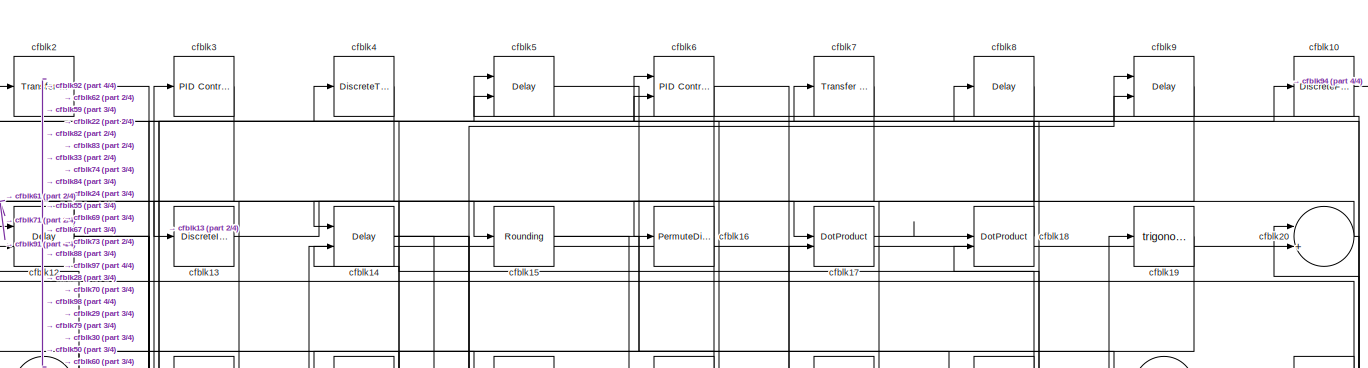
[diagram: root canvas - part 1/4, full width, top band]
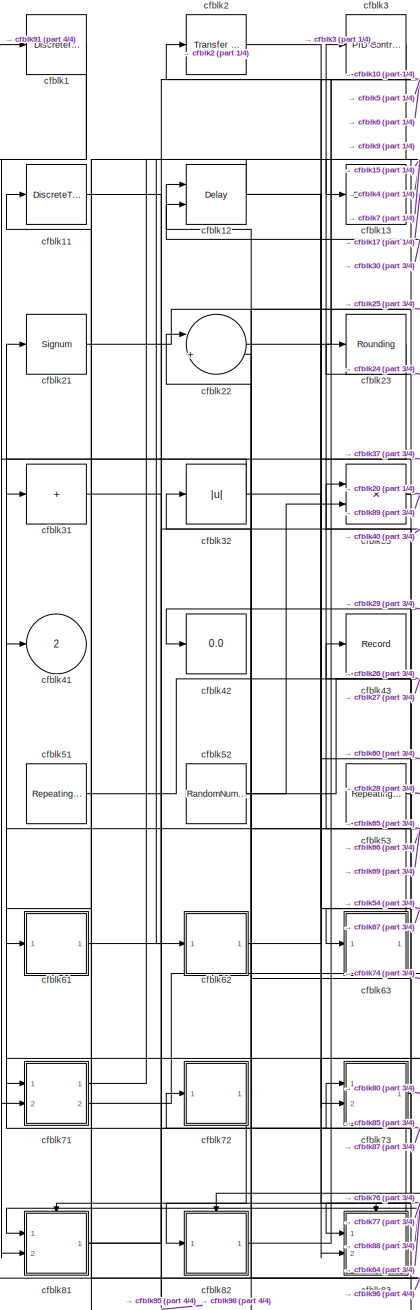
[diagram: root canvas - part 2/4, left side, full height]
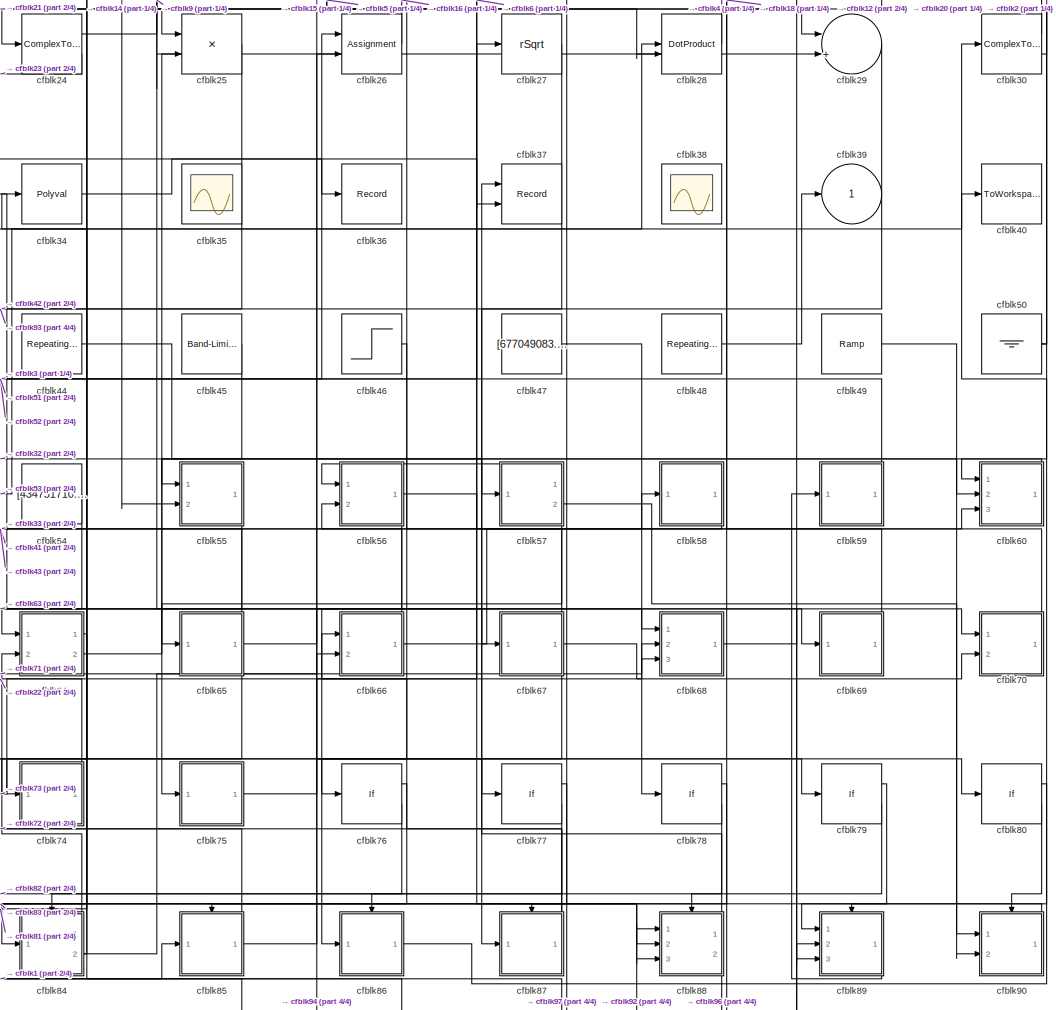
[diagram: root canvas - part 3/4, central region]
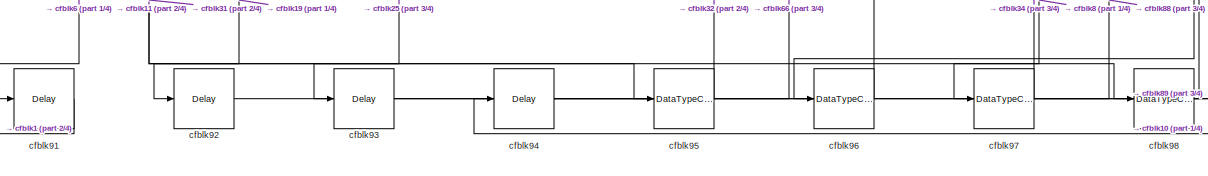
[diagram: root canvas - part 4/4, full width, bottom band]
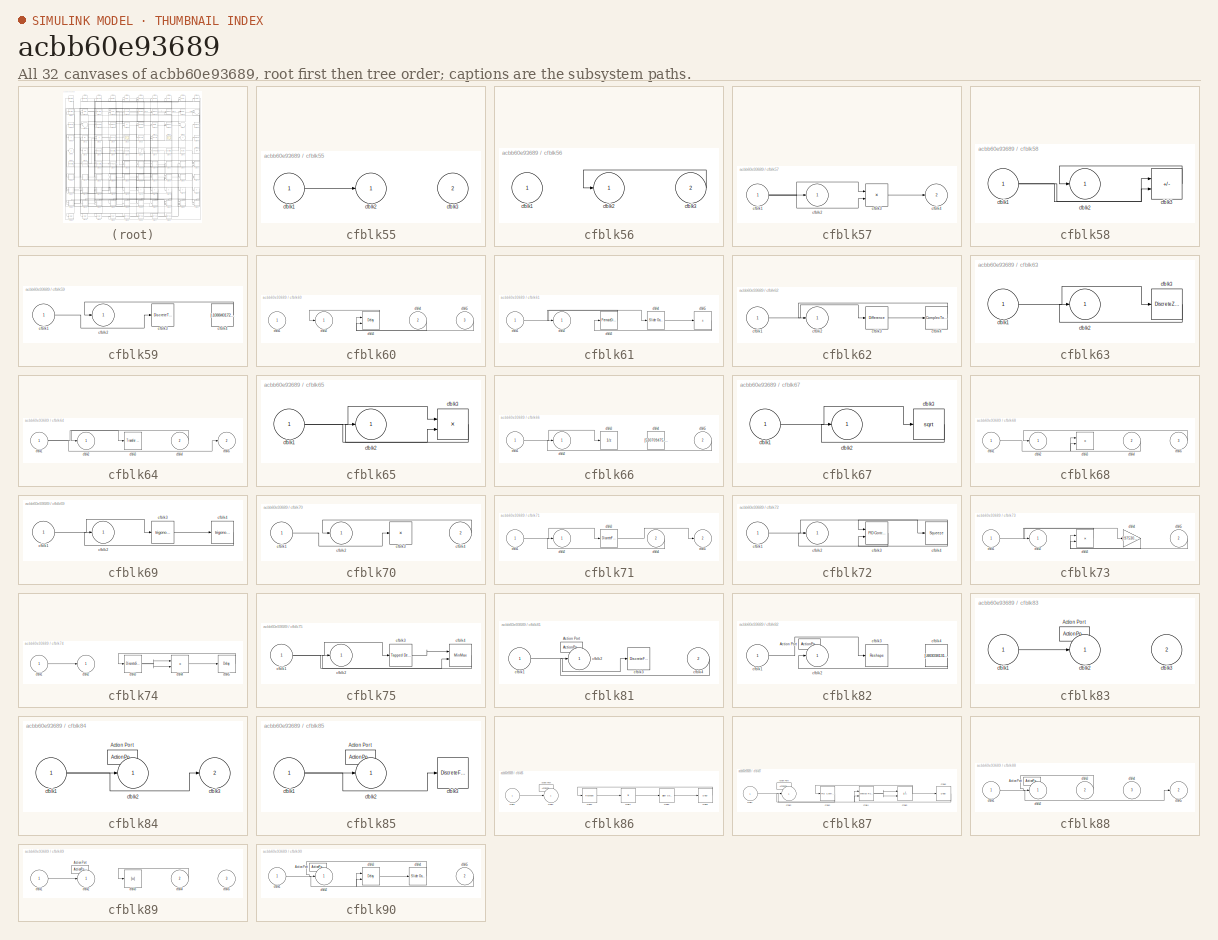
[diagram: thumbnail index - all 32 canvases of the model, root first then tree order]
MODEL slx_acbb60e93689
KIND model
CONFIG AbsTol = auto
CONFIG EnableMultiTasking = off
CONFIG FixedStep = auto
CONFIG MaxStep = auto
CONFIG MinStep = auto
CONFIG RelTol = 1e-3
CONFIG SampleTimeConstraint = Unconstrained
CONFIG SolverName = VariableStepAuto
CONFIG StartTime = 0.0
CONFIG StopTime = 10.0
BLOCK [DiscreteIntegrator] cfblk1
  ICPrevOutput = DiscIntNeverNeededParam
  ICPrevScaledInput = DiscIntNeverNeededParam
  InitialConditionSetting = Auto
  Ports = [1, 1]
BLOCK [DiscreteFir] cfblk10
  InputPortMap = u0
  OutputPortMap = o0
  Ports = [1, 1]
  SampleTime = 1
BLOCK [DiscreteTransferFcn] cfblk11
  InputPortMap = u0
  Ports = [1, 1]
  SampleTime = 1
BLOCK [Delay] cfblk12
  DelayLengthSource = Input port
  InputPortMap = u0,p1
  Ports = [2, 1]
  SampleTime = 1
BLOCK [DiscreteIntegrator] cfblk13
  ICPrevOutput = DiscIntNeverNeededParam
  ICPrevScaledInput = DiscIntNeverNeededParam
  InitialConditionSetting = Auto
  Ports = [1, 1]
BLOCK [Delay] cfblk14
  DelayLengthSource = Input port
  InputPortMap = u0,p1
  Ports = [2, 1]
  SampleTime = 1
BLOCK [Rounding] cfblk15
BLOCK [PermuteDimensions] cfblk16
BLOCK [DotProduct] cfblk17
  OutDataTypeStr = Inherit: Inherit via internal rule
BLOCK [DotProduct] cfblk18
  OutDataTypeStr = Inherit: Inherit via internal rule
BLOCK [Trigonometry] cfblk19
  Ports = [1, 1]
BLOCK [Reference] cfblk2  REF=simulink/Discrete/Transfer Fcn
Lead or Lag
  Ports = [1, 1]
  SourceBlock = simulink/Discrete/Transfer Fcn\nLead or Lag
  SourceProductBaseCode = SL
  SourceType = Lead or Lag Compensator
BLOCK [Sum] cfblk20
  Inputs = |++
  Ports = [2, 1]
BLOCK [Signum] cfblk21
BLOCK [Sum] cfblk22
  Inputs = |++
  Ports = [2, 1]
BLOCK [Rounding] cfblk23
BLOCK [ComplexToRealImag] cfblk24
  Ports = [1, 2]
BLOCK [Product] cfblk25
  Inputs = **
  Ports = [2, 1]
BLOCK [Assignment] cfblk26
  DiagnosticForDimensions = Warning
  IndexOptions = Index vector (dialog)
  Indices = 1
  OutputSizes = 1
  Ports = [2, 1]
BLOCK [Sqrt] cfblk27
  AlgorithmType = Newton-Raphson
  Operator = rSqrt
BLOCK [DotProduct] cfblk28
  OutDataTypeStr = Inherit: Inherit via internal rule
BLOCK [Sum] cfblk29
  Inputs = |++
  Ports = [2, 1]
BLOCK [Reference] cfblk3  REF=slpidlib/PID Controller
  Ports = [1, 1]
  SourceBlock = slpidlib/PID Controller
  SourceProductBaseCode = SL
  SourceType = PID 1dof
BLOCK [ComplexToMagnitudeAngle] cfblk30
  Ports = [1, 2]
BLOCK [Sum] cfblk31
  IconShape = rectangular
  Inputs = +
  Ports = [1, 1]
BLOCK [Abs] cfblk32
  SaturateOnIntegerOverflow = off
BLOCK [Product] cfblk33
  Ports = [2, 1]
BLOCK [Polyval] cfblk34
  Coefs = [ +2.081618890e-019, -1.441693666e-014, +4.719686976e-010, -8.536869453e-006, +1.621573104e-001, -8.087801117e+001 ]
BLOCK [Scope] cfblk35
  Floating = on
  NumInputPorts = 1
  Ports = []
BLOCK [Record] cfblk36
  FileSettingsInternal = {"entries":[{"content":{"excelSettings":{"content":{},"type":"Streamout.ExcelSettings"}},"type":"Streamout.FileSettingStorage","uuid":"d7722583-864d-4d4a-ab53-a30fd8bc522f"}],"packageUris":["http://schema.mathworks.com/mf0/streamout_blocks/R2020a"],"version":"1.0"}
  Ports = [1]
  SignalsInternal = {"entries":[{"content":{"signals":[{"content":{"blockPath":["sampleModel159/cfblk36"],"channel":[],"dimensions":[1],"domain":"sampleModel159/cfblk36","lineColor":"#7e2f8e","plots":[1],"port":1,"sid":[""],"signalID":5985,"signalName":"cfblk34"},"type":"RecordBlkView.Signal","uuid":"3a2588af-3a77-4d12-afac-d2fe4b86079b"}]},"type":"RecordBlkView.InputSignals","uuid":"f3c2cde3-3312-4265-9433-a51979e81...<+97ch>
  VisualizationBindings = {"sparklinesplugin":{"info":[{"bindingParametersList":[],"subplotID":1}]}}
BLOCK [Record] cfblk37
  CompatibilityTag = XY
  FileSettingsInternal = {"entries":[{"content":{"excelSettings":{"content":{},"type":"Streamout.ExcelSettings"}},"type":"Streamout.FileSettingStorage","uuid":"265782c7-edde-4386-a87b-91fbf00f51e3"}],"packageUris":["http://schema.mathworks.com/mf0/streamout_blocks/R2020a"],"version":"1.0"}
  Layout = [1 1]
  Ports = [2]
  SignalsInternal = {"entries":[{"content":{"signals":[{"content":{"blockPath":["sampleModel159/cfblk37"],"channel":[],"dimensions":[1],"domain":"sampleModel159/cfblk37","lineColor":"#a2142f","plots":[1],"port":1,"sid":[""],"signalID":5989,"signalName":"cfblk88:1"},"type":"RecordBlkView.Signal","uuid":"2ae5abb4-e55b-4449-8a96-8916efcf4daa"},{"content":{"blockPath":["sampleModel159/cfblk37"],"channel":[],"dimensions":...<+385ch>
  VisualizationBindings = {"xyplotplugin":{"info":[{"series":[{"bindingParametersList":[{"parameter":"X-Axis","signalID":5989,"signalName":"cfblk88:1"},{"parameter":"Y-Axis","signalID":5993,"signalName":"cfblk12"}],"seriesID":2249}],"subplotID":1}]}}
BLOCK [Scope] cfblk38
  Floating = on
  NumInputPorts = 1
  Ports = []
BLOCK [Outport] cfblk39
BLOCK [DiscreteTransferFcn] cfblk4
  InputPortMap = u0
  Ports = [1, 1]
  SampleTime = 1
BLOCK [ToWorkspace] cfblk40
  FixptAsFi = on
  MaxDataPoints = inf
  Ports = [1]
  SampleTime = -1
  SaveFormat = Timeseries
  VariableName = fihbwbh
BLOCK [Outport] cfblk41
  Port = 2
BLOCK [Display] cfblk42
  Decimation = 1
  Ports = [1]
BLOCK [Record] cfblk43
  FileSettingsInternal = {"entries":[{"content":{"excelSettings":{"content":{},"type":"Streamout.ExcelSettings"}},"type":"Streamout.FileSettingStorage","uuid":"f273f23f-1cb4-4df7-8851-01ebd8e7c17f"}],"packageUris":["http://schema.mathworks.com/mf0/streamout_blocks/R2020a"],"version":"1.0"}
  Ports = [1]
  SignalsInternal = {"entries":[{"content":{"signals":[{"content":{"blockPath":["sampleModel159/cfblk43"],"channel":[],"dimensions":[1],"domain":"sampleModel159/cfblk43","lineColor":"#a2142f","plots":[1],"port":1,"sid":[""],"signalID":5997,"signalName":"cfblk65"},"type":"RecordBlkView.Signal","uuid":"2796c890-e527-4589-aee7-605b3f696eaa"}]},"type":"RecordBlkView.InputSignals","uuid":"adf8e2c7-f589-4299-966a-ef667586f...<+97ch>
  VisualizationBindings = {"sparklinesplugin":{"info":[{"bindingParametersList":[],"subplotID":1}]}}
BLOCK [Reference] cfblk44  REF=simulink/Sources/Repeating
Sequence
Interpolated
  Ports = [0, 1]
  SourceBlock = simulink/Sources/Repeating\nSequence\nInterpolated
  SourceProductBaseCode = SL
  SourceType = Repeating Sequence Interpolated
BLOCK [Reference] cfblk45  REF=simulink/Sources/Band-Limited
White Noise
  Ports = [0, 1]
  SourceBlock = simulink/Sources/Band-Limited\nWhite Noise
  SourceProductBaseCode = SL
  SourceType = Band-Limited White Noise.
BLOCK [Step] cfblk46
  After = [115577451.244555]
  Before = [-972336311.478940]
  SampleTime = 0
  Time = [21.000000]
BLOCK [Constant] cfblk47
  SampleTime = 1
  Value = [677049083.815513]
BLOCK [Reference] cfblk48  REF=simulink/Sources/Repeating
Sequence
  Ports = [0, 1]
  SourceBlock = simulink/Sources/Repeating\nSequence
  SourceProductBaseCode = SL
  SourceType = Repeating table
BLOCK [Reference] cfblk49  REF=simulink/Sources/Ramp
  Ports = [0, 1]
  SourceBlock = simulink/Sources/Ramp
  SourceProductBaseCode = SL
  SourceType = Ramp
BLOCK [Delay] cfblk5
  DelayLengthSource = Input port
  InputPortMap = u0,p1
  Ports = [2, 1]
  SampleTime = 1
BLOCK [Ground] cfblk50
BLOCK [Reference] cfblk51  REF=simulink/Sources/Repeating
Sequence
Stair
  Ports = [0, 1]
  SourceBlock = simulink/Sources/Repeating\nSequence\nStair
  SourceProductBaseCode = SL
  SourceType = Repeating Sequence Stair
BLOCK [RandomNumber] cfblk52
  Mean = [-98654.128632]
  SampleTime = 0.1
  Seed = [973301869.000000]
  Variance = [84256.626575]
BLOCK [Reference] cfblk53  REF=simulink/Sources/Repeating
Sequence
Stair
  Ports = [0, 1]
  SourceBlock = simulink/Sources/Repeating\nSequence\nStair
  SourceProductBaseCode = SL
  SourceType = Repeating Sequence Stair
BLOCK [Constant] cfblk54
  SampleTime = 1
  Value = [434751710.379107]
BLOCK [SubSystem] cfblk55
  Ports = [2, 1]
  RequestExecContextInheritance = off
BLOCK [Inport] cfblk55/cfblk1
BLOCK [Outport] cfblk55/cfblk2
BLOCK [Inport] cfblk55/cfblk3
  Port = 2
BLOCK [SubSystem] cfblk56
  Ports = [2, 1]
  RequestExecContextInheritance = off
BLOCK [Inport] cfblk56/cfblk1
BLOCK [Outport] cfblk56/cfblk2
BLOCK [Inport] cfblk56/cfblk3
  Port = 2
BLOCK [SubSystem] cfblk57
  Ports = [1, 2]
  RequestExecContextInheritance = off
BLOCK [Inport] cfblk57/cfblk1
BLOCK [Outport] cfblk57/cfblk2
BLOCK [Product] cfblk57/cfblk3
  Ports = [2, 1]
BLOCK [Outport] cfblk57/cfblk4
  Port = 2
BLOCK [SubSystem] cfblk58
  Ports = [1, 1]
  RequestExecContextInheritance = off
BLOCK [Inport] cfblk58/cfblk1
BLOCK [Outport] cfblk58/cfblk2
BLOCK [Sum] cfblk58/cfblk3
  IconShape = rectangular
  Inputs = +-
  Ports = [2, 1]
BLOCK [SubSystem] cfblk59
  Ports = [1, 1]
  RequestExecContextInheritance = off
BLOCK [Inport] cfblk59/cfblk1
BLOCK [Outport] cfblk59/cfblk2
BLOCK [DiscreteTransferFcn] cfblk59/cfblk3
  InputPortMap = u0
  Ports = [1, 1]
  SampleTime = 1
BLOCK [Constant] cfblk59/cfblk4
  SampleTime = 1
  Value = [-108840172.251652]
BLOCK [Reference] cfblk6  REF=slpidlib/PID Controller (2DOF)
  Ports = [2, 1]
  SourceBlock = slpidlib/PID Controller (2DOF)
  SourceProductBaseCode = SL
  SourceType = PID 2dof
BLOCK [SubSystem] cfblk60
  Ports = [3, 1]
  RequestExecContextInheritance = off
BLOCK [Inport] cfblk60/cfblk1
BLOCK [Outport] cfblk60/cfblk2
BLOCK [Delay] cfblk60/cfblk3
  DelayLengthSource = Input port
  InputPortMap = u0,p1
  Ports = [2, 1]
  SampleTime = 1
BLOCK [Inport] cfblk60/cfblk4
  Port = 2
BLOCK [Inport] cfblk60/cfblk5
  Port = 3
BLOCK [SubSystem] cfblk61
  Ports = [1, 1]
  RequestExecContextInheritance = off
BLOCK [Inport] cfblk61/cfblk1
BLOCK [Outport] cfblk61/cfblk2
BLOCK [PermuteDimensions] cfblk61/cfblk3
BLOCK [Reference] cfblk61/cfblk4  REF=simulink/Math
Operations/Slider
Gain
  Ports = [1, 1]
  SourceBlock = simulink/Math\nOperations/Slider\nGain
  SourceProductBaseCode = SL
  SourceType = Slider Gain
BLOCK [Sum] cfblk61/cfblk5
  IconShape = rectangular
  Inputs = +
  Ports = [1, 1]
BLOCK [SubSystem] cfblk62
  Ports = [1, 1]
  RequestExecContextInheritance = off
BLOCK [Inport] cfblk62/cfblk1
BLOCK [Outport] cfblk62/cfblk2
BLOCK [Reference] cfblk62/cfblk3  REF=simulink/Discrete/Difference
  Ports = [1, 1]
  SourceBlock = simulink/Discrete/Difference
  SourceProductBaseCode = SL
  SourceType = Difference
BLOCK [ComplexToMagnitudeAngle] cfblk62/cfblk4
  Ports = [1, 2]
BLOCK [SubSystem] cfblk63
  Ports = [1, 1]
  RequestExecContextInheritance = off
BLOCK [Inport] cfblk63/cfblk1
BLOCK [Outport] cfblk63/cfblk2
BLOCK [DiscreteZeroPole] cfblk63/cfblk3
  Gain = 1
  Poles = [0 0.5]
BLOCK [SubSystem] cfblk64
  Ports = [2, 2]
  RequestExecContextInheritance = off
BLOCK [Inport] cfblk64/cfblk1
BLOCK [Outport] cfblk64/cfblk2
BLOCK [Reference] cfblk64/cfblk3  REF=simulink/Discrete/Transfer Fcn
Lead or Lag
  Ports = [1, 1]
  SourceBlock = simulink/Discrete/Transfer Fcn\nLead or Lag
  SourceProductBaseCode = SL
  SourceType = Lead or Lag Compensator
BLOCK [Inport] cfblk64/cfblk4
  Port = 2
BLOCK [Outport] cfblk64/cfblk5
  Port = 2
BLOCK [SubSystem] cfblk65
  Ports = [1, 1]
  RequestExecContextInheritance = off
BLOCK [Inport] cfblk65/cfblk1
BLOCK [Outport] cfblk65/cfblk2
BLOCK [Product] cfblk65/cfblk3
  Inputs = **
  Ports = [2, 1]
BLOCK [SubSystem] cfblk66
  Ports = [2, 1]
  RequestExecContextInheritance = off
BLOCK [Inport] cfblk66/cfblk1
BLOCK [Outport] cfblk66/cfblk2
BLOCK [UnitDelay] cfblk66/cfblk3
  HasFrameUpgradeWarning = on
BLOCK [Constant] cfblk66/cfblk4
  SampleTime = 1
  Value = [530709475.363478]
BLOCK [Inport] cfblk66/cfblk5
  Port = 2
BLOCK [SubSystem] cfblk67
  Ports = [1, 1]
  RequestExecContextInheritance = off
BLOCK [Inport] cfblk67/cfblk1
BLOCK [Outport] cfblk67/cfblk2
BLOCK [Sqrt] cfblk67/cfblk3
BLOCK [SubSystem] cfblk68
  Ports = [3, 1]
  RequestExecContextInheritance = off
BLOCK [Inport] cfblk68/cfblk1
BLOCK [Outport] cfblk68/cfblk2
BLOCK [Product] cfblk68/cfblk3
  Ports = [2, 1]
BLOCK [Inport] cfblk68/cfblk4
  Port = 2
BLOCK [Inport] cfblk68/cfblk5
  Port = 3
BLOCK [SubSystem] cfblk69
  Ports = [1, 1]
  RequestExecContextInheritance = off
BLOCK [Inport] cfblk69/cfblk1
BLOCK [Outport] cfblk69/cfblk2
BLOCK [Trigonometry] cfblk69/cfblk3
  Ports = [1, 1]
BLOCK [Trigonometry] cfblk69/cfblk4
  Ports = [1, 1]
BLOCK [Reference] cfblk7  REF=simulink/Discrete/Transfer Fcn
First Order
  Ports = [1, 1]
  SourceBlock = simulink/Discrete/Transfer Fcn\nFirst Order
  SourceProductBaseCode = SL
  SourceType = First Order Transfer Fcn
BLOCK [SubSystem] cfblk70
  Ports = [2, 1]
  RequestExecContextInheritance = off
BLOCK [Inport] cfblk70/cfblk1
BLOCK [Outport] cfblk70/cfblk2
BLOCK [Product] cfblk70/cfblk3
  Inputs = *
  Ports = [1, 1]
BLOCK [Inport] cfblk70/cfblk4
  Port = 2
BLOCK [SubSystem] cfblk71
  Ports = [2, 2]
  RequestExecContextInheritance = off
BLOCK [Inport] cfblk71/cfblk1
BLOCK [Outport] cfblk71/cfblk2
BLOCK [DiscreteFir] cfblk71/cfblk3
  InputPortMap = u0
  OutputPortMap = o0
  Ports = [1, 1]
  SampleTime = 1
BLOCK [Inport] cfblk71/cfblk4
  Port = 2
BLOCK [Outport] cfblk71/cfblk5
  Port = 2
BLOCK [SubSystem] cfblk72
  Ports = [1, 1]
  RequestExecContextInheritance = off
BLOCK [Inport] cfblk72/cfblk1
BLOCK [Outport] cfblk72/cfblk2
BLOCK [Reference] cfblk72/cfblk3  REF=slpidlib/PID Controller (2DOF)
  Ports = [2, 1]
  SourceBlock = slpidlib/PID Controller (2DOF)
  SourceProductBaseCode = SL
  SourceType = PID 2dof
BLOCK [Squeeze] cfblk72/cfblk4
BLOCK [SubSystem] cfblk73
  Ports = [2, 1]
  RequestExecContextInheritance = off
BLOCK [Inport] cfblk73/cfblk1
BLOCK [Outport] cfblk73/cfblk2
BLOCK [Product] cfblk73/cfblk3
  Ports = [2, 1]
BLOCK [Gain] cfblk73/cfblk4
  Gain = [-97530227.463397]
BLOCK [Inport] cfblk73/cfblk5
  Port = 2
BLOCK [SubSystem] cfblk74
  Ports = [1, 1]
  RequestExecContextInheritance = off
BLOCK [Inport] cfblk74/cfblk1
BLOCK [Outport] cfblk74/cfblk2
BLOCK [DiscreteStateSpace] cfblk74/cfblk3
BLOCK [Product] cfblk74/cfblk4
  Inputs = **
  Ports = [2, 1]
BLOCK [Delay] cfblk74/cfblk5
  InputPortMap = u0
  Ports = [1, 1]
  SampleTime = 1
BLOCK [SubSystem] cfblk75
  Ports = [1, 1]
  RequestExecContextInheritance = off
BLOCK [Inport] cfblk75/cfblk1
BLOCK [Outport] cfblk75/cfblk2
BLOCK [Reference] cfblk75/cfblk3  REF=simulink/Discrete/Tapped Delay
  Ports = [1, 1]
  SourceBlock = simulink/Discrete/Tapped Delay
  SourceProductBaseCode = SL
  SourceType = Tapped Delay Line
BLOCK [MinMax] cfblk75/cfblk4
  Function = max
  Inputs = 2
  Ports = [2, 1]
BLOCK [If] cfblk76
  IfExpression = u1 >= 0
  Ports = [1, 2]
  SampleTime = 1
BLOCK [If] cfblk77
  IfExpression = u1 >= 0
  Ports = [1, 2]
  SampleTime = 1
BLOCK [If] cfblk78
  IfExpression = u1 >= 0
  Ports = [1, 2]
  SampleTime = 1
BLOCK [If] cfblk79
  IfExpression = u1 >= 0
  Ports = [1, 2]
  SampleTime = 1
BLOCK [Delay] cfblk8
  InputPortMap = u0
  Ports = [1, 1]
  SampleTime = 1
BLOCK [If] cfblk80
  IfExpression = u1 >= 0
  Ports = [1, 2]
  SampleTime = 1
BLOCK [SubSystem] cfblk81
  Ports = [2, 1, 0, 0, 0, 0, 0, 1]
  RequestExecContextInheritance = off
  TreatAsAtomicUnit = on
BLOCK [ActionPort] cfblk81/Action Port
  ActionPortLabel = if(u1 >= 0)
BLOCK [Inport] cfblk81/cfblk1
BLOCK [Outport] cfblk81/cfblk2
BLOCK [DiscreteFir] cfblk81/cfblk3
  InputPortMap = u0
  OutputPortMap = o0
  Ports = [1, 1]
BLOCK [Inport] cfblk81/cfblk4
  Port = 2
BLOCK [SubSystem] cfblk82
  Ports = [1, 1, 0, 0, 0, 0, 0, 1]
  RequestExecContextInheritance = off
  TreatAsAtomicUnit = on
BLOCK [ActionPort] cfblk82/Action Port
  ActionPortLabel = else
BLOCK [Inport] cfblk82/cfblk1
BLOCK [Outport] cfblk82/cfblk2
BLOCK [Reshape] cfblk82/cfblk3
  Ports = [1, 1]
BLOCK [Constant] cfblk82/cfblk4
  SampleTime = 1
  Value = [-883038131.442429]
BLOCK [SubSystem] cfblk83
  Ports = [2, 1, 0, 0, 0, 0, 0, 1]
  RequestExecContextInheritance = off
  TreatAsAtomicUnit = on
BLOCK [ActionPort] cfblk83/Action Port
  ActionPortLabel = if(u1 >= 0)
BLOCK [Inport] cfblk83/cfblk1
BLOCK [Outport] cfblk83/cfblk2
BLOCK [Inport] cfblk83/cfblk3
  Port = 2
BLOCK [SubSystem] cfblk84
  Ports = [1, 2, 0, 0, 0, 0, 0, 1]
  RequestExecContextInheritance = off
  TreatAsAtomicUnit = on
BLOCK [ActionPort] cfblk84/Action Port
  ActionPortLabel = else
BLOCK [Inport] cfblk84/cfblk1
BLOCK [Outport] cfblk84/cfblk2
BLOCK [Outport] cfblk84/cfblk3
  Port = 2
BLOCK [SubSystem] cfblk85
  Ports = [1, 1, 0, 0, 0, 0, 0, 1]
  RequestExecContextInheritance = off
  TreatAsAtomicUnit = on
BLOCK [ActionPort] cfblk85/Action Port
  ActionPortLabel = if(u1 >= 0)
BLOCK [Inport] cfblk85/cfblk1
BLOCK [Outport] cfblk85/cfblk2
BLOCK [DiscreteFir] cfblk85/cfblk3
  InputPortMap = u0
  OutputPortMap = o0
  Ports = [1, 1]
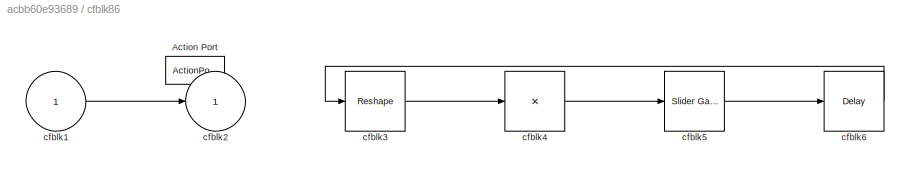
BLOCK [SubSystem] cfblk86
  Ports = [1, 1, 0, 0, 0, 0, 0, 1]
  RequestExecContextInheritance = off
  TreatAsAtomicUnit = on
BLOCK [ActionPort] cfblk86/Action Port
  ActionPortLabel = else
BLOCK [Inport] cfblk86/cfblk1
BLOCK [Outport] cfblk86/cfblk2
BLOCK [Reshape] cfblk86/cfblk3
  Ports = [1, 1]
BLOCK [Product] cfblk86/cfblk4
  Inputs = *
  Ports = [1, 1]
BLOCK [Reference] cfblk86/cfblk5  REF=simulink/Math
Operations/Slider
Gain
  Ports = [1, 1]
  SourceBlock = simulink/Math\nOperations/Slider\nGain
  SourceProductBaseCode = SL
  SourceType = Slider Gain
BLOCK [Delay] cfblk86/cfblk6
  InputPortMap = u0
  Ports = [1, 1]
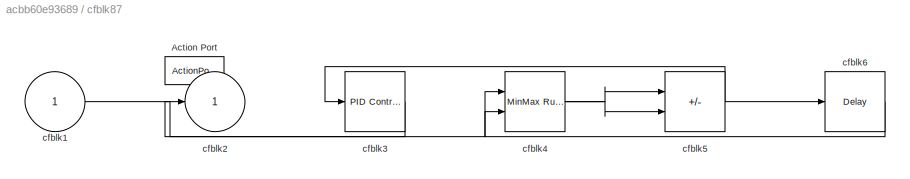
BLOCK [SubSystem] cfblk87
  Ports = [1, 1, 0, 0, 0, 0, 0, 1]
  RequestExecContextInheritance = off
  TreatAsAtomicUnit = on
BLOCK [ActionPort] cfblk87/Action Port
  ActionPortLabel = if(u1 >= 0)
BLOCK [Inport] cfblk87/cfblk1
BLOCK [Outport] cfblk87/cfblk2
BLOCK [Reference] cfblk87/cfblk3  REF=slpidlib/PID Controller
  Ports = [1, 1]
  SourceBlock = slpidlib/PID Controller
  SourceProductBaseCode = SL
  SourceType = PID 1dof
BLOCK [Reference] cfblk87/cfblk4  REF=simulink/Math
Operations/MinMax
Running
Resettable
  Ports = [2, 1]
  SourceBlock = simulink/Math\nOperations/MinMax\nRunning\nResettable
  SourceProductBaseCode = SL
  SourceType = MinMax Running Resettable
BLOCK [Sum] cfblk87/cfblk5
  IconShape = rectangular
  Inputs = --
  Ports = [2, 1]
BLOCK [Delay] cfblk87/cfblk6
  InputPortMap = u0
  Ports = [1, 1]
BLOCK [SubSystem] cfblk88
  Ports = [3, 2, 0, 0, 0, 0, 0, 1]
  RequestExecContextInheritance = off
  TreatAsAtomicUnit = on
BLOCK [ActionPort] cfblk88/Action Port
  ActionPortLabel = else
BLOCK [Inport] cfblk88/cfblk1
BLOCK [Outport] cfblk88/cfblk2
BLOCK [Inport] cfblk88/cfblk3
  Port = 2
BLOCK [Inport] cfblk88/cfblk4
  Port = 3
BLOCK [Outport] cfblk88/cfblk5
  Port = 2
BLOCK [SubSystem] cfblk89
  Ports = [3, 1, 0, 0, 0, 0, 0, 1]
  RequestExecContextInheritance = off
  TreatAsAtomicUnit = on
BLOCK [ActionPort] cfblk89/Action Port
  ActionPortLabel = if(u1 >= 0)
BLOCK [Inport] cfblk89/cfblk1
BLOCK [Outport] cfblk89/cfblk2
BLOCK [Abs] cfblk89/cfblk3
  SaturateOnIntegerOverflow = off
BLOCK [Inport] cfblk89/cfblk4
  Port = 2
BLOCK [Inport] cfblk89/cfblk5
  Port = 3
BLOCK [Delay] cfblk9
  DelayLengthSource = Input port
  InputPortMap = u0,p1
  Ports = [2, 1]
  SampleTime = 1
BLOCK [SubSystem] cfblk90
  Ports = [2, 1, 0, 0, 0, 0, 0, 1]
  RequestExecContextInheritance = off
  TreatAsAtomicUnit = on
BLOCK [ActionPort] cfblk90/Action Port
  ActionPortLabel = else
BLOCK [Inport] cfblk90/cfblk1
BLOCK [Outport] cfblk90/cfblk2
BLOCK [Delay] cfblk90/cfblk3
  DelayLengthSource = Input port
  InputPortMap = u0,p1
  Ports = [2, 1]
BLOCK [Reference] cfblk90/cfblk4  REF=simulink/Math
Operations/Slider
Gain
  Ports = [1, 1]
  SourceBlock = simulink/Math\nOperations/Slider\nGain
  SourceProductBaseCode = SL
  SourceType = Slider Gain
BLOCK [Inport] cfblk90/cfblk5
  Port = 2
BLOCK [Delay] cfblk91
  InputPortMap = u0
  Ports = [1, 1]
  SampleTime = 1
BLOCK [Delay] cfblk92
  InputPortMap = u0
  Ports = [1, 1]
  SampleTime = 1
BLOCK [Delay] cfblk93
  InputPortMap = u0
  Ports = [1, 1]
  SampleTime = 1
BLOCK [Delay] cfblk94
  InputPortMap = u0
  Ports = [1, 1]
  SampleTime = 1
BLOCK [DataTypeConversion] cfblk95
  RndMeth = Floor
  SaturateOnIntegerOverflow = off
BLOCK [DataTypeConversion] cfblk96
  RndMeth = Floor
  SaturateOnIntegerOverflow = off
BLOCK [DataTypeConversion] cfblk97
  RndMeth = Floor
  SaturateOnIntegerOverflow = off
BLOCK [DataTypeConversion] cfblk98
  RndMeth = Floor
  SaturateOnIntegerOverflow = off
LINE cfblk10:1 -> cfblk94:1
LINE cfblk11:1 -> cfblk95:1
NET cfblk12:1 -> cfblk37:2, cfblk62:1, cfblk67:1, cfblk88:2
LINE cfblk13:1 -> cfblk17:1
NET cfblk14:1 -> cfblk29:2, cfblk55:2, cfblk69:1
NET cfblk15:1 -> cfblk29:1, cfblk79:1
NET cfblk16:1 -> cfblk14:1, cfblk74:1
LINE cfblk17:1 -> cfblk18:1
LINE cfblk18:1 -> cfblk7:1
LINE cfblk19:1 -> cfblk92:1
NET cfblk1:1 -> cfblk71:2, cfblk85:1
NET cfblk20:1 -> cfblk16:1, cfblk60:1
LINE cfblk21:1 -> cfblk25:1
LINE cfblk22:1 -> cfblk10:1
LINE cfblk23:1 -> cfblk81:2
LINE cfblk24:1 -> cfblk9:1
LINE cfblk24:2 -> cfblk23:1
LINE cfblk25:1 -> cfblk93:1
LINE cfblk26:1 -> cfblk24:1
LINE cfblk27:1 -> cfblk57:1
LINE cfblk28:1 -> cfblk4:1
LINE cfblk29:1 -> cfblk42:1
LINE cfblk2:1 -> cfblk83:2
LINE cfblk30:1 -> cfblk12:1
LINE cfblk30:2 -> cfblk5:2
LINE cfblk31:1 -> cfblk98:1
NET cfblk32:1 -> cfblk31:1, cfblk60:2
NET cfblk33:1 -> cfblk20:2, cfblk89:3
LINE cfblk34:1 -> cfblk36:1
LINE cfblk3:1 -> cfblk61:1
LINE cfblk44:1 -> cfblk87:1
LINE cfblk45:1 -> cfblk75:1
LINE cfblk46:1 -> cfblk76:1
LINE cfblk47:1 -> cfblk78:1
LINE cfblk48:1 -> cfblk39:1
LINE cfblk49:1 -> cfblk90:2
LINE cfblk4:1 -> cfblk13:1
NET cfblk50:1 -> cfblk20:1, cfblk2:1
LINE cfblk51:1 -> cfblk27:1
NET cfblk52:1 -> cfblk26:1, cfblk33:2
LINE cfblk53:1 -> cfblk28:1
LINE cfblk54:1 -> cfblk63:1
LINE cfblk55/cfblk1:1 -> cfblk55/cfblk2:1
LINE cfblk55:1 -> cfblk64:1
LINE cfblk56/cfblk3:1 -> cfblk56/cfblk2:1
NET cfblk56:1 -> cfblk60:3, cfblk86:1
NET cfblk57/cfblk1:1 -> cfblk57/cfblk2:1, cfblk57/cfblk3:1, cfblk57/cfblk3:2
LINE cfblk57/cfblk3:1 -> cfblk57/cfblk4:1
LINE cfblk57:1 -> cfblk56:1
NET cfblk57:2 -> cfblk65:1, cfblk90:1
NET cfblk58/cfblk1:1 -> cfblk58/cfblk3:1, cfblk58/cfblk3:2
LINE cfblk58/cfblk3:1 -> cfblk58/cfblk2:1
LINE cfblk58:1 -> cfblk56:2
LINE cfblk59/cfblk1:1 -> cfblk59/cfblk3:1
LINE cfblk59/cfblk4:1 -> cfblk59/cfblk2:1
LINE cfblk59:1 -> cfblk3:1
LINE cfblk5:1 -> cfblk28:2
LINE cfblk60/cfblk3:1 -> cfblk60/cfblk2:1
LINE cfblk60/cfblk4:1 -> cfblk60/cfblk3:2
LINE cfblk60/cfblk5:1 -> cfblk60/cfblk3:1
LINE cfblk60:1 -> cfblk55:1
LINE cfblk61/cfblk1:1 -> cfblk61/cfblk4:1
LINE cfblk61/cfblk3:1 -> cfblk61/cfblk2:1
LINE cfblk61/cfblk4:1 -> cfblk61/cfblk5:1
LINE cfblk61/cfblk5:1 -> cfblk61/cfblk3:1
LINE cfblk61:1 -> cfblk5:1
LINE cfblk62/cfblk1:1 -> cfblk62/cfblk3:1
LINE cfblk62/cfblk3:1 -> cfblk62/cfblk4:1
LINE cfblk62/cfblk4:1 -> cfblk62/cfblk2:1
LINE cfblk62:1 -> cfblk6:1
LINE cfblk63/cfblk1:1 -> cfblk63/cfblk3:1
LINE cfblk63/cfblk3:1 -> cfblk63/cfblk2:1
LINE cfblk63:1 -> cfblk22:1
NET cfblk64/cfblk1:1 -> cfblk64/cfblk3:1, cfblk64/cfblk5:1
LINE cfblk64/cfblk4:1 -> cfblk64/cfblk2:1
LINE cfblk64:1 -> cfblk81:1
LINE cfblk64:2 -> cfblk25:2
NET cfblk65/cfblk1:1 -> cfblk65/cfblk3:1, cfblk65/cfblk3:2
LINE cfblk65/cfblk3:1 -> cfblk65/cfblk2:1
NET cfblk65:1 -> cfblk43:1, cfblk68:1, cfblk71:1
LINE cfblk66/cfblk1:1 -> cfblk66/cfblk3:1
LINE cfblk66/cfblk5:1 -> cfblk66/cfblk2:1
NET cfblk66:1 -> cfblk33:1, cfblk58:1
LINE cfblk67/cfblk1:1 -> cfblk67/cfblk3:1
LINE cfblk67/cfblk3:1 -> cfblk67/cfblk2:1
NET cfblk67:1 -> cfblk6:2, cfblk70:2, cfblk73:2
LINE cfblk68/cfblk1:1 -> cfblk68/cfblk3:2
LINE cfblk68/cfblk4:1 -> cfblk68/cfblk3:1
LINE cfblk68/cfblk5:1 -> cfblk68/cfblk2:1
LINE cfblk68:1 -> cfblk70:1
LINE cfblk69/cfblk1:1 -> cfblk69/cfblk3:1
LINE cfblk69/cfblk3:1 -> cfblk69/cfblk4:1
LINE cfblk69/cfblk4:1 -> cfblk69/cfblk2:1
LINE cfblk69:1 -> cfblk41:1
NET cfblk6:1 -> cfblk88:3, cfblk91:1
LINE cfblk70/cfblk1:1 -> cfblk70/cfblk3:1
LINE cfblk70/cfblk4:1 -> cfblk70/cfblk2:1
LINE cfblk70:1 -> cfblk18:2
LINE cfblk71/cfblk1:1 -> cfblk71/cfblk3:1
LINE cfblk71/cfblk3:1 -> cfblk71/cfblk5:1
LINE cfblk71/cfblk4:1 -> cfblk71/cfblk2:1
LINE cfblk71:1 -> cfblk15:1
LINE cfblk71:2 -> cfblk26:2
LINE cfblk72/cfblk1:1 -> cfblk72/cfblk4:1
LINE cfblk72/cfblk3:1 -> cfblk72/cfblk2:1
NET cfblk72/cfblk4:1 -> cfblk72/cfblk3:1, cfblk72/cfblk3:2
LINE cfblk72:1 -> cfblk82:1
LINE cfblk73/cfblk1:1 -> cfblk73/cfblk4:1
LINE cfblk73/cfblk3:1 -> cfblk73/cfblk2:1
LINE cfblk73/cfblk4:1 -> cfblk73/cfblk3:2
LINE cfblk73/cfblk5:1 -> cfblk73/cfblk3:1
NET cfblk73:1 -> cfblk17:2, cfblk80:1
LINE cfblk74/cfblk1:1 -> cfblk74/cfblk2:1
NET cfblk74/cfblk3:1 -> cfblk74/cfblk4:1, cfblk74/cfblk4:2
LINE cfblk74/cfblk4:1 -> cfblk74/cfblk5:1
LINE cfblk74/cfblk5:1 -> cfblk74/cfblk3:1
LINE cfblk74:1 -> cfblk22:2
NET cfblk75/cfblk1:1 -> cfblk75/cfblk3:1, cfblk75/cfblk4:2
LINE cfblk75/cfblk3:1 -> cfblk75/cfblk4:1
LINE cfblk75/cfblk4:1 -> cfblk75/cfblk2:1
LINE cfblk75:1 -> cfblk77:1
LINE cfblk76:1 -> cfblk81:ifaction
LINE cfblk76:2 -> cfblk82:ifaction
LINE cfblk77:1 -> cfblk83:ifaction
LINE cfblk77:2 -> cfblk84:ifaction
LINE cfblk78:1 -> cfblk85:ifaction
LINE cfblk78:2 -> cfblk86:ifaction
LINE cfblk79:1 -> cfblk87:ifaction
LINE cfblk79:2 -> cfblk88:ifaction
LINE cfblk7:1 -> cfblk83:1
LINE cfblk80:1 -> cfblk89:ifaction
LINE cfblk80:2 -> cfblk90:ifaction
LINE cfblk81/cfblk1:1 -> cfblk81/cfblk3:1
LINE cfblk81/cfblk4:1 -> cfblk81/cfblk2:1
NET cfblk81:1 -> cfblk40:1, cfblk73:1
LINE cfblk82/cfblk1:1 -> cfblk82/cfblk3:1
LINE cfblk82/cfblk4:1 -> cfblk82/cfblk2:1
LINE cfblk82:1 -> cfblk9:2
LINE cfblk83/cfblk1:1 -> cfblk83/cfblk2:1
LINE cfblk83:1 -> cfblk21:1
NET cfblk84/cfblk1:1 -> cfblk84/cfblk2:1, cfblk84/cfblk3:1
LINE cfblk84:1 -> cfblk64:2
NET cfblk84:2 -> cfblk14:2, cfblk68:2
NET cfblk85/cfblk1:1 -> cfblk85/cfblk2:1, cfblk85/cfblk3:1
NET cfblk85:1 -> cfblk12:2, cfblk68:3
LINE cfblk86/cfblk1:1 -> cfblk86/cfblk2:1
LINE cfblk86/cfblk3:1 -> cfblk86/cfblk4:1
LINE cfblk86/cfblk4:1 -> cfblk86/cfblk5:1
LINE cfblk86/cfblk5:1 -> cfblk86/cfblk6:1
LINE cfblk86/cfblk6:1 -> cfblk86/cfblk3:1
LINE cfblk86:1 -> cfblk30:1
LINE cfblk87/cfblk1:1 -> cfblk87/cfblk4:1
LINE cfblk87/cfblk3:1 -> cfblk87/cfblk2:1
NET cfblk87/cfblk4:1 -> cfblk87/cfblk5:1, cfblk87/cfblk5:2
NET cfblk87/cfblk5:1 -> cfblk87/cfblk3:1, cfblk87/cfblk6:1
LINE cfblk87/cfblk6:1 -> cfblk87/cfblk4:2
NET cfblk87:1 -> cfblk66:1, cfblk72:1
LINE cfblk88/cfblk1:1 -> cfblk88/cfblk5:1
LINE cfblk88/cfblk3:1 -> cfblk88/cfblk2:1
LINE cfblk88:1 -> cfblk37:1
LINE cfblk88:2 -> cfblk96:1
LINE cfblk89/cfblk1:1 -> cfblk89/cfblk2:1
LINE cfblk89/cfblk4:1 -> cfblk89/cfblk3:1
LINE cfblk89:1 -> cfblk59:1
LINE cfblk8:1 -> cfblk97:1
LINE cfblk90/cfblk1:1 -> cfblk90/cfblk3:1
LINE cfblk90/cfblk3:1 -> cfblk90/cfblk4:1
LINE cfblk90/cfblk4:1 -> cfblk90/cfblk2:1
LINE cfblk90/cfblk5:1 -> cfblk90/cfblk3:2
LINE cfblk90:1 -> cfblk89:1
LINE cfblk91:1 -> cfblk1:1
LINE cfblk92:1 -> cfblk88:1
LINE cfblk93:1 -> cfblk89:2
LINE cfblk94:1 -> cfblk66:2
LINE cfblk95:1 -> cfblk32:1
LINE cfblk96:1 -> cfblk11:1
NET cfblk97:1 -> cfblk19:1, cfblk34:1
LINE cfblk98:1 -> cfblk8:1
LINE cfblk9:1 -> cfblk84:1
note: NET lines group one-source signal fan-out (src -> all destinations, sorted); 1:1 wires keep LINE
